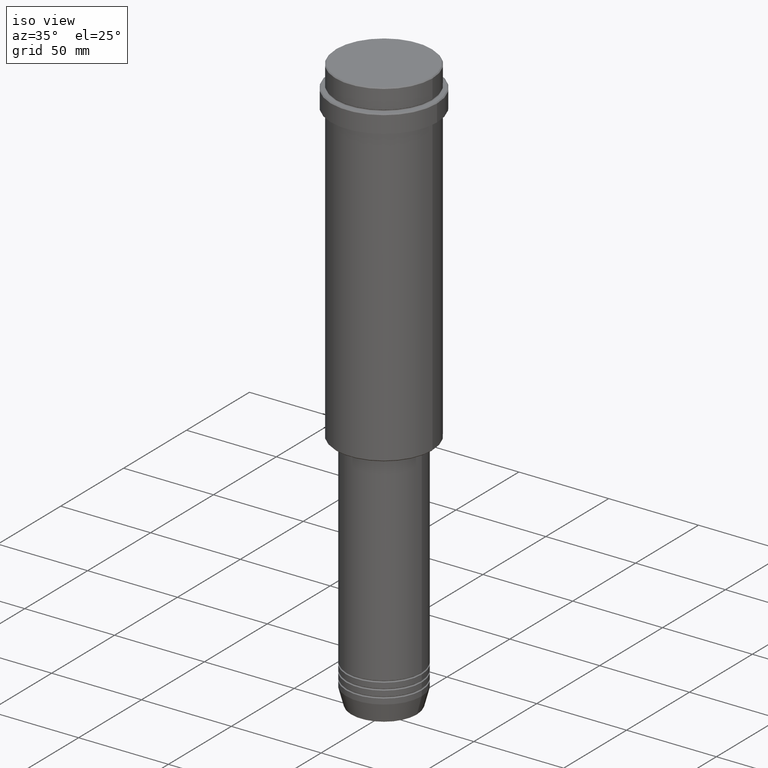
[diagram: clean part render]
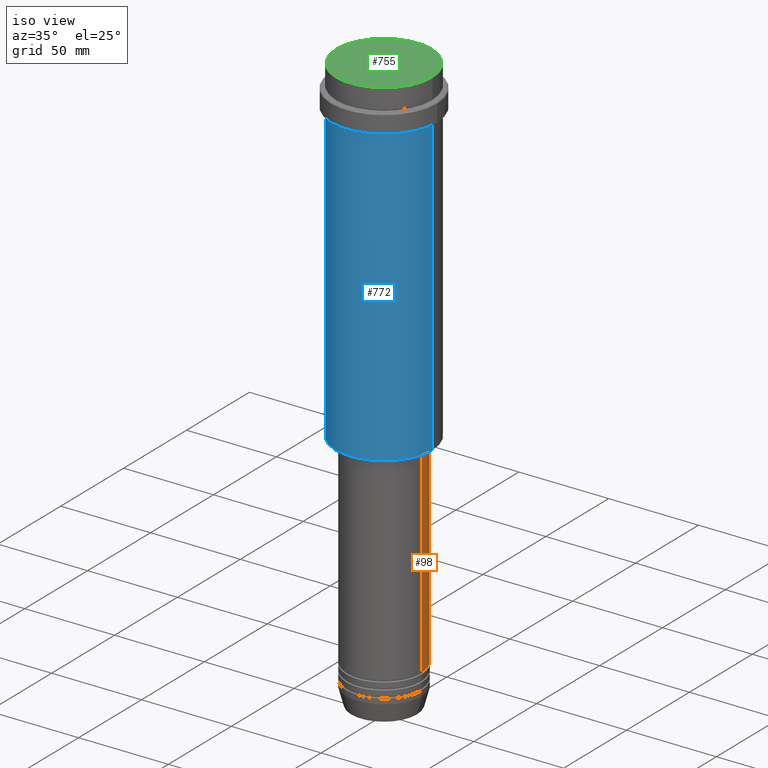
[diagram: same view with three faces highlighted in distinct colors, each labeled with its STEP entity id]
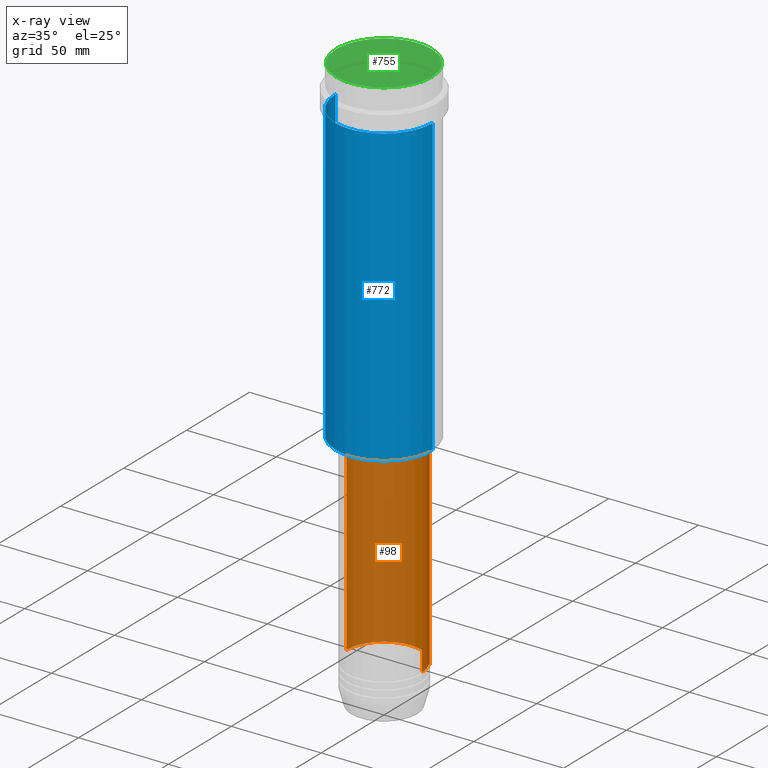
[diagram: x-ray of the same camera — body ghosted, the three highlighted faces saturated]
A machine part, iso view with three faces highlighted in distinct colors.
The next image is the same camera in x-ray (body ghosted, the three faces saturated) — at least one of them is partly hidden behind the body in this view.
Their STEP definitions:

[orange] entity #98 — the highlighted cylindrical surface (partial cylindrical patch) has radius 21 mm, axis along (-0, -0, 1).
#4 = VERTEX_POINT ( 'NONE', #512 ) ;
#23 = ORIENTED_EDGE ( 'NONE', *, *, #610, .T. ) ;
#98 = ADVANCED_FACE ( 'NONE', ( #814 ), #1279, .T. ) ;
#128 = CARTESIAN_POINT ( 'NONE',  ( 0.000000000000000000, 0.000000000000000000, -188.9999999999999147 ) ) ;
#147 = CARTESIAN_POINT ( 'NONE',  ( -21.00000000000000000, 2.571758278209441661E-15, -188.9999999999999147 ) ) ;
#223 = VERTEX_POINT ( 'NONE', #1353 ) ;
#224 = AXIS2_PLACEMENT_3D ( 'NONE', #128, #1339, #880 ) ;
#349 = EDGE_LOOP ( 'NONE', ( #1069, #23, #1138, #1405 ) ) ;
#393 = CIRCLE ( 'NONE', #1286, 21.00000000000000000 ) ;
#475 = CARTESIAN_POINT ( 'NONE',  ( -21.00000000000000000, 2.571758278209441661E-15, 0.000000000000000000 ) ) ;
#494 = DIRECTION ( 'NONE',  ( -0.000000000000000000, -0.000000000000000000, 1.000000000000000000 ) ) ;
#512 = CARTESIAN_POINT ( 'NONE',  ( 21.00000000000000000, 0.000000000000000000, -188.9999999999999147 ) ) ;
#524 = CARTESIAN_POINT ( 'NONE',  ( 0.000000000000000000, 0.000000000000000000, -300.9999999999998863 ) ) ;
#590 = CARTESIAN_POINT ( 'NONE',  ( 21.00000000000000000, 0.000000000000000000, -300.9999999999998863 ) ) ;
#595 = LINE ( 'NONE', #475, #619 ) ;
#610 = EDGE_CURVE ( 'NONE', #223, #888, #595, .T. ) ;
#619 = VECTOR ( 'NONE', #918, 1000.000000000000000 ) ;
#638 = CARTESIAN_POINT ( 'NONE',  ( 0.000000000000000000, 0.000000000000000000, 0.000000000000000000 ) ) ;
#713 = LINE ( 'NONE', #1267, #879 ) ;
#736 = CIRCLE ( 'NONE', #224, 21.00000000000000000 ) ;
#773 = VERTEX_POINT ( 'NONE', #590 ) ;
#810 = EDGE_CURVE ( 'NONE', #773, #4, #713, .T. ) ;
#814 = FACE_OUTER_BOUND ( 'NONE', #349, .T. ) ;
#817 = EDGE_CURVE ( 'NONE', #773, #223, #393, .T. ) ;
#818 = AXIS2_PLACEMENT_3D ( 'NONE', #638, #1077, #1180 ) ;
#833 = EDGE_CURVE ( 'NONE', #4, #888, #736, .T. ) ;
#879 = VECTOR ( 'NONE', #494, 1000.000000000000000 ) ;
#880 = DIRECTION ( 'NONE',  ( 1.000000000000000000, 0.000000000000000000, 0.000000000000000000 ) ) ;
#888 = VERTEX_POINT ( 'NONE', #147 ) ;
#918 = DIRECTION ( 'NONE',  ( -0.000000000000000000, -0.000000000000000000, 1.000000000000000000 ) ) ;
#1069 = ORIENTED_EDGE ( 'NONE', *, *, #817, .T. ) ;
#1077 = DIRECTION ( 'NONE',  ( -0.000000000000000000, -0.000000000000000000, 1.000000000000000000 ) ) ;
#1130 = DIRECTION ( 'NONE',  ( 1.000000000000000000, 0.000000000000000000, 0.000000000000000000 ) ) ;
#1138 = ORIENTED_EDGE ( 'NONE', *, *, #833, .F. ) ;
#1180 = DIRECTION ( 'NONE',  ( 1.000000000000000000, 0.000000000000000000, 0.000000000000000000 ) ) ;
#1267 = CARTESIAN_POINT ( 'NONE',  ( 21.00000000000000000, 0.000000000000000000, 0.000000000000000000 ) ) ;
#1279 = CYLINDRICAL_SURFACE ( 'NONE', #818, 21.00000000000000000 ) ;
#1286 = AXIS2_PLACEMENT_3D ( 'NONE', #524, #1332, #1130 ) ;
#1332 = DIRECTION ( 'NONE',  ( -0.000000000000000000, -0.000000000000000000, 1.000000000000000000 ) ) ;
#1339 = DIRECTION ( 'NONE',  ( -0.000000000000000000, -0.000000000000000000, 1.000000000000000000 ) ) ;
#1353 = CARTESIAN_POINT ( 'NONE',  ( -21.00000000000000000, 2.571758278209441661E-15, -300.9999999999998863 ) ) ;
#1405 = ORIENTED_EDGE ( 'NONE', *, *, #810, .F. ) ;

[blue] entity #772 — the highlighted cylindrical surface (partial cylindrical patch) has radius 27 mm, axis along (-0, -0, 1).
#62 = CARTESIAN_POINT ( 'NONE',  ( 0.000000000000000000, 0.000000000000000000, -187.4999999999999432 ) ) ;
#73 = VECTOR ( 'NONE', #194, 1000.000000000000000 ) ;
#107 = DIRECTION ( 'NONE',  ( -0.000000000000000000, -0.000000000000000000, 1.000000000000000000 ) ) ;
#120 = ORIENTED_EDGE ( 'NONE', *, *, #994, .F. ) ;
#123 = CARTESIAN_POINT ( 'NONE',  ( -27.00000000000000355, 3.306546357697854128E-15, -187.4999999999999432 ) ) ;
#151 = DIRECTION ( 'NONE',  ( -0.000000000000000000, -0.000000000000000000, 1.000000000000000000 ) ) ;
#154 = CIRCLE ( 'NONE', #331, 27.00000000000000355 ) ;
#162 = AXIS2_PLACEMENT_3D ( 'NONE', #1237, #151, #1210 ) ;
#168 = CARTESIAN_POINT ( 'NONE',  ( 27.00000000000000355, 0.000000000000000000, -187.4999999999999432 ) ) ;
#176 = DIRECTION ( 'NONE',  ( -1.000000000000000000, 0.000000000000000000, 0.000000000000000000 ) ) ;
#194 = DIRECTION ( 'NONE',  ( -0.000000000000000000, -0.000000000000000000, 1.000000000000000000 ) ) ;
#309 = VERTEX_POINT ( 'NONE', #823 ) ;
#314 = CIRCLE ( 'NONE', #1364, 27.00000000000000355 ) ;
#331 = AXIS2_PLACEMENT_3D ( 'NONE', #62, #811, #176 ) ;
#441 = CARTESIAN_POINT ( 'NONE',  ( -27.00000000000000355, 3.306546357697854128E-15, 0.000000000000000000 ) ) ;
#447 = EDGE_CURVE ( 'NONE', #1316, #1391, #154, .T. ) ;
#449 = ORIENTED_EDGE ( 'NONE', *, *, #447, .T. ) ;
#554 = EDGE_LOOP ( 'NONE', ( #575, #449, #1282, #120 ) ) ;
#575 = ORIENTED_EDGE ( 'NONE', *, *, #975, .F. ) ;
#670 = DIRECTION ( 'NONE',  ( 1.000000000000000000, 0.000000000000000000, 0.000000000000000000 ) ) ;
#741 = LINE ( 'NONE', #441, #1181 ) ;
#766 = DIRECTION ( 'NONE',  ( -0.000000000000000000, -0.000000000000000000, 1.000000000000000000 ) ) ;
#772 = ADVANCED_FACE ( 'NONE', ( #807 ), #813, .T. ) ;
#795 = EDGE_CURVE ( 'NONE', #1391, #309, #1260, .T. ) ;
#807 = FACE_OUTER_BOUND ( 'NONE', #554, .T. ) ;
#811 = DIRECTION ( 'NONE',  ( -0.000000000000000000, -0.000000000000000000, 1.000000000000000000 ) ) ;
#813 = CYLINDRICAL_SURFACE ( 'NONE', #162, 27.00000000000000355 ) ;
#823 = CARTESIAN_POINT ( 'NONE',  ( 27.00000000000000355, 0.000000000000000000, -23.00000000000001421 ) ) ;
#842 = CARTESIAN_POINT ( 'NONE',  ( 27.00000000000000355, 0.000000000000000000, 0.000000000000000000 ) ) ;
#975 = EDGE_CURVE ( 'NONE', #1316, #1191, #741, .T. ) ;
#994 = EDGE_CURVE ( 'NONE', #1191, #309, #314, .T. ) ;
#1004 = CARTESIAN_POINT ( 'NONE',  ( -27.00000000000000355, 3.306546357697854128E-15, -23.00000000000001421 ) ) ;
#1181 = VECTOR ( 'NONE', #766, 1000.000000000000000 ) ;
#1191 = VERTEX_POINT ( 'NONE', #1004 ) ;
#1210 = DIRECTION ( 'NONE',  ( 1.000000000000000000, 0.000000000000000000, 0.000000000000000000 ) ) ;
#1237 = CARTESIAN_POINT ( 'NONE',  ( 0.000000000000000000, 0.000000000000000000, 0.000000000000000000 ) ) ;
#1260 = LINE ( 'NONE', #842, #73 ) ;
#1282 = ORIENTED_EDGE ( 'NONE', *, *, #795, .T. ) ;
#1316 = VERTEX_POINT ( 'NONE', #123 ) ;
#1364 = AXIS2_PLACEMENT_3D ( 'NONE', #1404, #107, #670 ) ;
#1391 = VERTEX_POINT ( 'NONE', #168 ) ;
#1404 = CARTESIAN_POINT ( 'NONE',  ( 0.000000000000000000, 0.000000000000000000, -23.00000000000001421 ) ) ;

[green] entity #755 — the highlighted planar face has unit normal (0, -0, 1).
#76 = AXIS2_PLACEMENT_3D ( 'NONE', #919, #267, #606 ) ;
#166 = DIRECTION ( 'NONE',  ( -0.000000000000000000, -0.000000000000000000, 1.000000000000000000 ) ) ;
#178 = ORIENTED_EDGE ( 'NONE', *, *, #1375, .T. ) ;
#267 = DIRECTION ( 'NONE',  ( -0.000000000000000000, -0.000000000000000000, 1.000000000000000000 ) ) ;
#291 = CARTESIAN_POINT ( 'NONE',  ( 26.49999999999996803, 3.275930187719167974E-15, 0.000000000000000000 ) ) ;
#473 = CARTESIAN_POINT ( 'NONE',  ( 0.000000000000000000, 0.000000000000000000, 0.000000000000000000 ) ) ;
#600 = FACE_OUTER_BOUND ( 'NONE', #1295, .T. ) ;
#604 = DIRECTION ( 'NONE',  ( 1.000000000000000000, 0.000000000000000000, 0.000000000000000000 ) ) ;
#606 = DIRECTION ( 'NONE',  ( 1.000000000000000000, 0.000000000000000000, 0.000000000000000000 ) ) ;
#691 = CIRCLE ( 'NONE', #76, 26.49999999999996803 ) ;
#755 = ADVANCED_FACE ( 'NONE', ( #600 ), #1038, .T. ) ;
#776 = ORIENTED_EDGE ( 'NONE', *, *, #1189, .T. ) ;
#905 = DIRECTION ( 'NONE',  ( 0.000000000000000000, -0.000000000000000000, 1.000000000000000000 ) ) ;
#919 = CARTESIAN_POINT ( 'NONE',  ( 0.000000000000000000, 0.000000000000000000, 0.000000000000000000 ) ) ;
#1022 = CARTESIAN_POINT ( 'NONE',  ( 0.000000000000000000, 0.000000000000000000, 0.000000000000000000 ) ) ;
#1038 = PLANE ( 'NONE',  #1117 ) ;
#1098 = CARTESIAN_POINT ( 'NONE',  ( -26.49999999999996803, 0.000000000000000000, 0.000000000000000000 ) ) ;
#1110 = VERTEX_POINT ( 'NONE', #291 ) ;
#1117 = AXIS2_PLACEMENT_3D ( 'NONE', #473, #905, #1334 ) ;
#1189 = EDGE_CURVE ( 'NONE', #1278, #1110, #1256, .T. ) ;
#1256 = CIRCLE ( 'NONE', #1367, 26.49999999999996803 ) ;
#1278 = VERTEX_POINT ( 'NONE', #1098 ) ;
#1295 = EDGE_LOOP ( 'NONE', ( #776, #178 ) ) ;
#1334 = DIRECTION ( 'NONE',  ( 1.000000000000000000, 0.000000000000000000, 0.000000000000000000 ) ) ;
#1367 = AXIS2_PLACEMENT_3D ( 'NONE', #1022, #166, #604 ) ;
#1375 = EDGE_CURVE ( 'NONE', #1110, #1278, #691, .T. ) ;